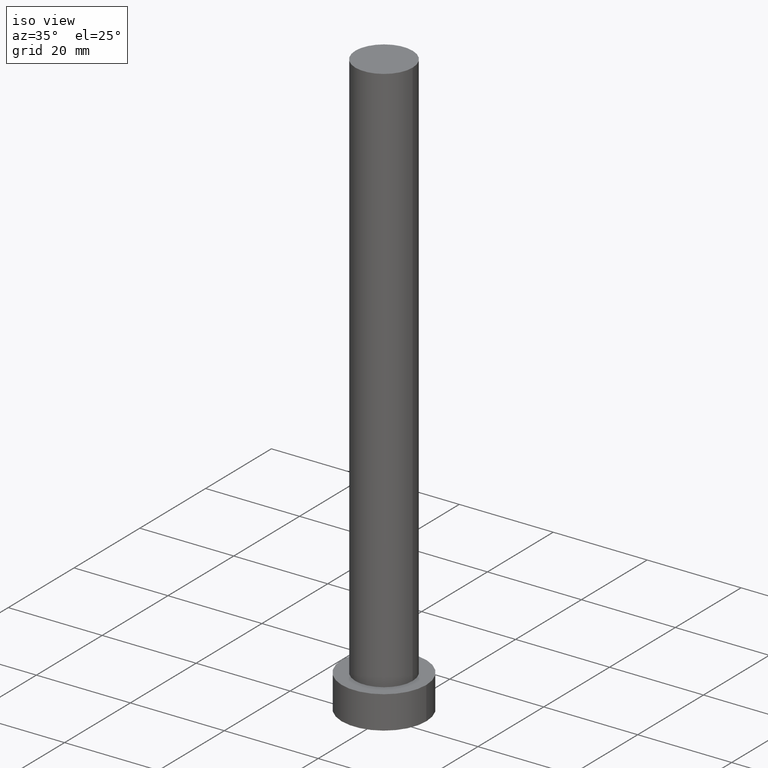
[diagram: clean part render]
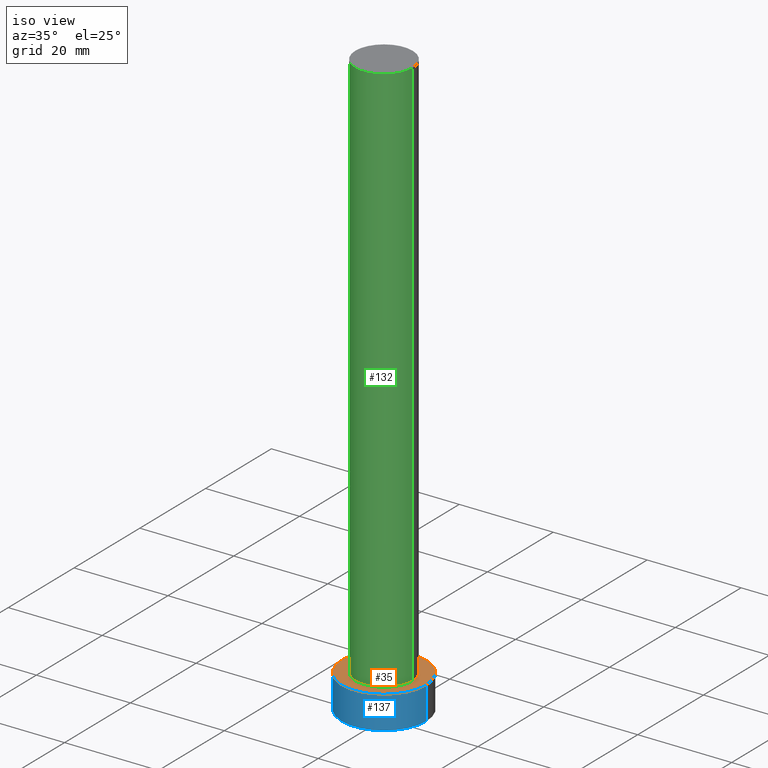
[diagram: same view with three faces highlighted in distinct colors, each labeled with its STEP entity id]
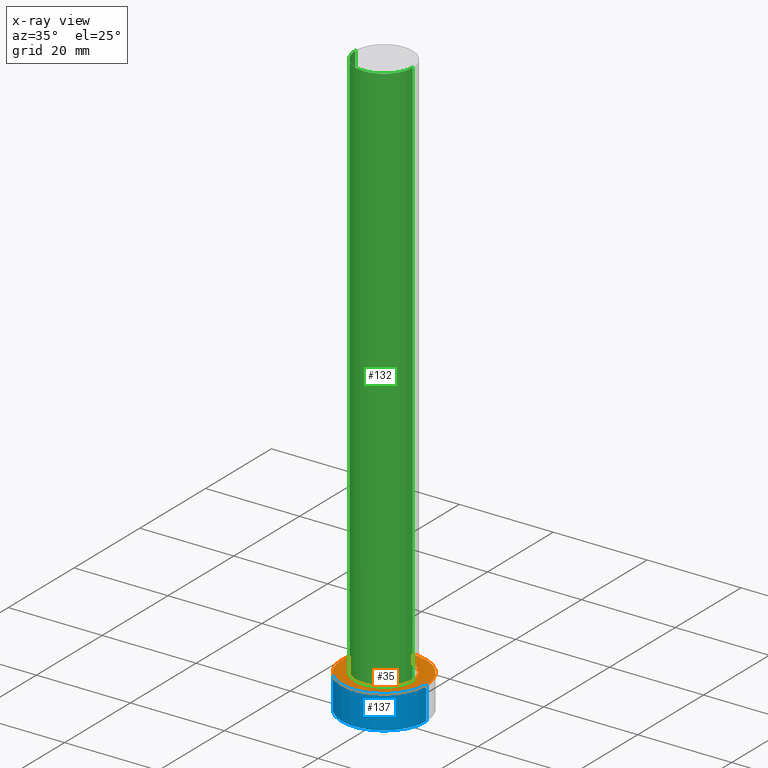
[diagram: x-ray of the same camera — body ghosted, the three highlighted faces saturated]
A machine part, iso view with three faces highlighted in distinct colors.
The next image is the same camera in x-ray (body ghosted, the three faces saturated) — at least one of them is partly hidden behind the body in this view.
Their STEP definitions:

[orange] entity #35 — the highlighted planar face has unit normal (0, 0, 1).
#7 = FACE_BOUND ( 'NONE', #59, .T. ) ;
#14 = DIRECTION ( 'NONE',  ( 0.000000000000000000, 0.000000000000000000, 1.000000000000000000 ) ) ;
#22 = VERTEX_POINT ( 'NONE', #172 ) ;
#28 = CARTESIAN_POINT ( 'NONE',  ( 6.099999999999999645, 7.470345474798854293E-16, 7.000000000000000000 ) ) ;
#30 = CARTESIAN_POINT ( 'NONE',  ( 0.000000000000000000, 0.000000000000000000, 7.000000000000000000 ) ) ;
#35 = ADVANCED_FACE ( 'NONE', ( #7, #155 ), #182, .T. ) ;
#37 = VERTEX_POINT ( 'NONE', #28 ) ;
#39 = EDGE_LOOP ( 'NONE', ( #83, #138 ) ) ;
#40 = ORIENTED_EDGE ( 'NONE', *, *, #50, .F. ) ;
#44 = DIRECTION ( 'NONE',  ( 1.000000000000000000, 0.000000000000000000, -0.000000000000000000 ) ) ;
#50 = EDGE_CURVE ( 'NONE', #37, #122, #54, .T. ) ;
#54 = CIRCLE ( 'NONE', #124, 6.099999999999999645 ) ;
#59 = EDGE_LOOP ( 'NONE', ( #241, #40 ) ) ;
#69 = DIRECTION ( 'NONE',  ( 0.000000000000000000, 0.000000000000000000, 1.000000000000000000 ) ) ;
#71 = DIRECTION ( 'NONE',  ( 1.000000000000000000, 0.000000000000000000, 0.000000000000000000 ) ) ;
#76 = VERTEX_POINT ( 'NONE', #108 ) ;
#83 = ORIENTED_EDGE ( 'NONE', *, *, #210, .T. ) ;
#87 = DIRECTION ( 'NONE',  ( 1.000000000000000000, 0.000000000000000000, 0.000000000000000000 ) ) ;
#88 = DIRECTION ( 'NONE',  ( 0.000000000000000000, 0.000000000000000000, 1.000000000000000000 ) ) ;
#89 = CIRCLE ( 'NONE', #191, 9.000000000000000000 ) ;
#104 = CARTESIAN_POINT ( 'NONE',  ( -6.099999999999999645, 0.000000000000000000, 7.000000000000000000 ) ) ;
#107 = DIRECTION ( 'NONE',  ( 0.000000000000000000, 0.000000000000000000, 1.000000000000000000 ) ) ;
#108 = CARTESIAN_POINT ( 'NONE',  ( -9.000000000000000000, 0.000000000000000000, 7.000000000000000000 ) ) ;
#111 = AXIS2_PLACEMENT_3D ( 'NONE', #131, #88, #71 ) ;
#121 = EDGE_CURVE ( 'NONE', #22, #76, #133, .T. ) ;
#122 = VERTEX_POINT ( 'NONE', #104 ) ;
#124 = AXIS2_PLACEMENT_3D ( 'NONE', #144, #69, #206 ) ;
#127 = CARTESIAN_POINT ( 'NONE',  ( 0.000000000000000000, 0.000000000000000000, 7.000000000000000000 ) ) ;
#131 = CARTESIAN_POINT ( 'NONE',  ( 0.000000000000000000, 0.000000000000000000, 7.000000000000000000 ) ) ;
#133 = CIRCLE ( 'NONE', #197, 9.000000000000000000 ) ;
#138 = ORIENTED_EDGE ( 'NONE', *, *, #121, .T. ) ;
#144 = CARTESIAN_POINT ( 'NONE',  ( 0.000000000000000000, 0.000000000000000000, 7.000000000000000000 ) ) ;
#148 = CARTESIAN_POINT ( 'NONE',  ( 0.000000000000000000, 0.000000000000000000, 7.000000000000000000 ) ) ;
#155 = FACE_OUTER_BOUND ( 'NONE', #39, .T. ) ;
#168 = AXIS2_PLACEMENT_3D ( 'NONE', #148, #184, #44 ) ;
#172 = CARTESIAN_POINT ( 'NONE',  ( 9.000000000000000000, 1.102182119232617714E-15, 7.000000000000000000 ) ) ;
#182 = PLANE ( 'NONE',  #168 ) ;
#184 = DIRECTION ( 'NONE',  ( 0.000000000000000000, 0.000000000000000000, 1.000000000000000000 ) ) ;
#191 = AXIS2_PLACEMENT_3D ( 'NONE', #127, #14, #87 ) ;
#197 = AXIS2_PLACEMENT_3D ( 'NONE', #30, #107, #248 ) ;
#206 = DIRECTION ( 'NONE',  ( 1.000000000000000000, 0.000000000000000000, 0.000000000000000000 ) ) ;
#210 = EDGE_CURVE ( 'NONE', #76, #22, #89, .T. ) ;
#225 = CIRCLE ( 'NONE', #111, 6.099999999999999645 ) ;
#241 = ORIENTED_EDGE ( 'NONE', *, *, #255, .F. ) ;
#248 = DIRECTION ( 'NONE',  ( 1.000000000000000000, 0.000000000000000000, 0.000000000000000000 ) ) ;
#255 = EDGE_CURVE ( 'NONE', #122, #37, #225, .T. ) ;

[blue] entity #137 — the highlighted cylindrical surface (partial cylindrical patch) has radius 9 mm, axis along (-0, -0, -1).
#12 = FACE_OUTER_BOUND ( 'NONE', #142, .T. ) ;
#14 = DIRECTION ( 'NONE',  ( 0.000000000000000000, 0.000000000000000000, 1.000000000000000000 ) ) ;
#22 = VERTEX_POINT ( 'NONE', #172 ) ;
#27 = DIRECTION ( 'NONE',  ( 1.000000000000000000, 0.000000000000000000, 0.000000000000000000 ) ) ;
#29 = CYLINDRICAL_SURFACE ( 'NONE', #128, 9.000000000000000000 ) ;
#51 = LINE ( 'NONE', #105, #243 ) ;
#76 = VERTEX_POINT ( 'NONE', #108 ) ;
#87 = DIRECTION ( 'NONE',  ( 1.000000000000000000, 0.000000000000000000, 0.000000000000000000 ) ) ;
#89 = CIRCLE ( 'NONE', #191, 9.000000000000000000 ) ;
#91 = EDGE_CURVE ( 'NONE', #139, #238, #224, .T. ) ;
#105 = CARTESIAN_POINT ( 'NONE',  ( 9.000000000000000000, 1.102182119232617714E-15, 7.000000000000000000 ) ) ;
#108 = CARTESIAN_POINT ( 'NONE',  ( -9.000000000000000000, 0.000000000000000000, 7.000000000000000000 ) ) ;
#113 = ORIENTED_EDGE ( 'NONE', *, *, #150, .F. ) ;
#127 = CARTESIAN_POINT ( 'NONE',  ( 0.000000000000000000, 0.000000000000000000, 7.000000000000000000 ) ) ;
#128 = AXIS2_PLACEMENT_3D ( 'NONE', #231, #251, #162 ) ;
#134 = VECTOR ( 'NONE', #223, 1000.000000000000000 ) ;
#135 = ORIENTED_EDGE ( 'NONE', *, *, #188, .T. ) ;
#137 = ADVANCED_FACE ( 'NONE', ( #12 ), #29, .T. ) ;
#139 = VERTEX_POINT ( 'NONE', #247 ) ;
#142 = EDGE_LOOP ( 'NONE', ( #113, #235, #135, #176 ) ) ;
#143 = DIRECTION ( 'NONE',  ( -0.000000000000000000, -0.000000000000000000, -1.000000000000000000 ) ) ;
#145 = LINE ( 'NONE', #146, #134 ) ;
#146 = CARTESIAN_POINT ( 'NONE',  ( -9.000000000000000000, 0.000000000000000000, 7.000000000000000000 ) ) ;
#150 = EDGE_CURVE ( 'NONE', #22, #238, #51, .T. ) ;
#162 = DIRECTION ( 'NONE',  ( -1.000000000000000000, 0.000000000000000000, 0.000000000000000000 ) ) ;
#170 = AXIS2_PLACEMENT_3D ( 'NONE', #189, #211, #27 ) ;
#172 = CARTESIAN_POINT ( 'NONE',  ( 9.000000000000000000, 1.102182119232617714E-15, 7.000000000000000000 ) ) ;
#176 = ORIENTED_EDGE ( 'NONE', *, *, #91, .T. ) ;
#188 = EDGE_CURVE ( 'NONE', #76, #139, #145, .T. ) ;
#189 = CARTESIAN_POINT ( 'NONE',  ( 0.000000000000000000, 0.000000000000000000, 0.000000000000000000 ) ) ;
#190 = CARTESIAN_POINT ( 'NONE',  ( 9.000000000000000000, 1.102182119232617714E-15, 0.000000000000000000 ) ) ;
#191 = AXIS2_PLACEMENT_3D ( 'NONE', #127, #14, #87 ) ;
#210 = EDGE_CURVE ( 'NONE', #76, #22, #89, .T. ) ;
#211 = DIRECTION ( 'NONE',  ( 0.000000000000000000, 0.000000000000000000, 1.000000000000000000 ) ) ;
#223 = DIRECTION ( 'NONE',  ( -0.000000000000000000, -0.000000000000000000, -1.000000000000000000 ) ) ;
#224 = CIRCLE ( 'NONE', #170, 9.000000000000000000 ) ;
#231 = CARTESIAN_POINT ( 'NONE',  ( 0.000000000000000000, 0.000000000000000000, 7.000000000000000000 ) ) ;
#235 = ORIENTED_EDGE ( 'NONE', *, *, #210, .F. ) ;
#238 = VERTEX_POINT ( 'NONE', #190 ) ;
#243 = VECTOR ( 'NONE', #143, 1000.000000000000000 ) ;
#247 = CARTESIAN_POINT ( 'NONE',  ( -9.000000000000000000, 0.000000000000000000, 0.000000000000000000 ) ) ;
#251 = DIRECTION ( 'NONE',  ( -0.000000000000000000, -0.000000000000000000, -1.000000000000000000 ) ) ;

[green] entity #132 — the highlighted cylindrical surface (edge-blend (fillet) strip) has radius 6.1 mm, axis along (-0, -0, -1).
#2 = VERTEX_POINT ( 'NONE', #203 ) ;
#9 = VERTEX_POINT ( 'NONE', #216 ) ;
#11 = DIRECTION ( 'NONE',  ( -0.000000000000000000, -0.000000000000000000, -1.000000000000000000 ) ) ;
#16 = VECTOR ( 'NONE', #65, 1000.000000000000000 ) ;
#19 = EDGE_CURVE ( 'NONE', #2, #9, #249, .T. ) ;
#20 = ORIENTED_EDGE ( 'NONE', *, *, #158, .F. ) ;
#24 = AXIS2_PLACEMENT_3D ( 'NONE', #194, #99, #117 ) ;
#28 = CARTESIAN_POINT ( 'NONE',  ( 6.099999999999999645, 7.470345474798854293E-16, 7.000000000000000000 ) ) ;
#31 = DIRECTION ( 'NONE',  ( -0.000000000000000000, -0.000000000000000000, -1.000000000000000000 ) ) ;
#34 = EDGE_LOOP ( 'NONE', ( #20, #221, #58, #179 ) ) ;
#37 = VERTEX_POINT ( 'NONE', #28 ) ;
#45 = CARTESIAN_POINT ( 'NONE',  ( 0.000000000000000000, 0.000000000000000000, 125.0000000000000000 ) ) ;
#55 = EDGE_CURVE ( 'NONE', #2, #122, #164, .T. ) ;
#58 = ORIENTED_EDGE ( 'NONE', *, *, #55, .T. ) ;
#63 = CYLINDRICAL_SURFACE ( 'NONE', #92, 6.099999999999999645 ) ;
#65 = DIRECTION ( 'NONE',  ( -0.000000000000000000, -0.000000000000000000, -1.000000000000000000 ) ) ;
#71 = DIRECTION ( 'NONE',  ( 1.000000000000000000, 0.000000000000000000, 0.000000000000000000 ) ) ;
#88 = DIRECTION ( 'NONE',  ( 0.000000000000000000, 0.000000000000000000, 1.000000000000000000 ) ) ;
#92 = AXIS2_PLACEMENT_3D ( 'NONE', #45, #11, #250 ) ;
#99 = DIRECTION ( 'NONE',  ( 0.000000000000000000, 0.000000000000000000, 1.000000000000000000 ) ) ;
#104 = CARTESIAN_POINT ( 'NONE',  ( -6.099999999999999645, 0.000000000000000000, 7.000000000000000000 ) ) ;
#111 = AXIS2_PLACEMENT_3D ( 'NONE', #131, #88, #71 ) ;
#117 = DIRECTION ( 'NONE',  ( 1.000000000000000000, 0.000000000000000000, 0.000000000000000000 ) ) ;
#122 = VERTEX_POINT ( 'NONE', #104 ) ;
#126 = CARTESIAN_POINT ( 'NONE',  ( -6.099999999999999645, 0.000000000000000000, 125.0000000000000000 ) ) ;
#131 = CARTESIAN_POINT ( 'NONE',  ( 0.000000000000000000, 0.000000000000000000, 7.000000000000000000 ) ) ;
#132 = ADVANCED_FACE ( 'NONE', ( #208 ), #63, .T. ) ;
#158 = EDGE_CURVE ( 'NONE', #9, #37, #227, .T. ) ;
#164 = LINE ( 'NONE', #126, #205 ) ;
#179 = ORIENTED_EDGE ( 'NONE', *, *, #255, .T. ) ;
#186 = CARTESIAN_POINT ( 'NONE',  ( 6.099999999999999645, 7.470345474798854293E-16, 125.0000000000000000 ) ) ;
#194 = CARTESIAN_POINT ( 'NONE',  ( 0.000000000000000000, 0.000000000000000000, 125.0000000000000000 ) ) ;
#203 = CARTESIAN_POINT ( 'NONE',  ( -6.099999999999999645, 0.000000000000000000, 125.0000000000000000 ) ) ;
#205 = VECTOR ( 'NONE', #31, 1000.000000000000000 ) ;
#208 = FACE_OUTER_BOUND ( 'NONE', #34, .T. ) ;
#216 = CARTESIAN_POINT ( 'NONE',  ( 6.099999999999999645, 7.470345474798854293E-16, 125.0000000000000000 ) ) ;
#221 = ORIENTED_EDGE ( 'NONE', *, *, #19, .F. ) ;
#225 = CIRCLE ( 'NONE', #111, 6.099999999999999645 ) ;
#227 = LINE ( 'NONE', #186, #16 ) ;
#249 = CIRCLE ( 'NONE', #24, 6.099999999999999645 ) ;
#250 = DIRECTION ( 'NONE',  ( -1.000000000000000000, 0.000000000000000000, 0.000000000000000000 ) ) ;
#255 = EDGE_CURVE ( 'NONE', #122, #37, #225, .T. ) ;